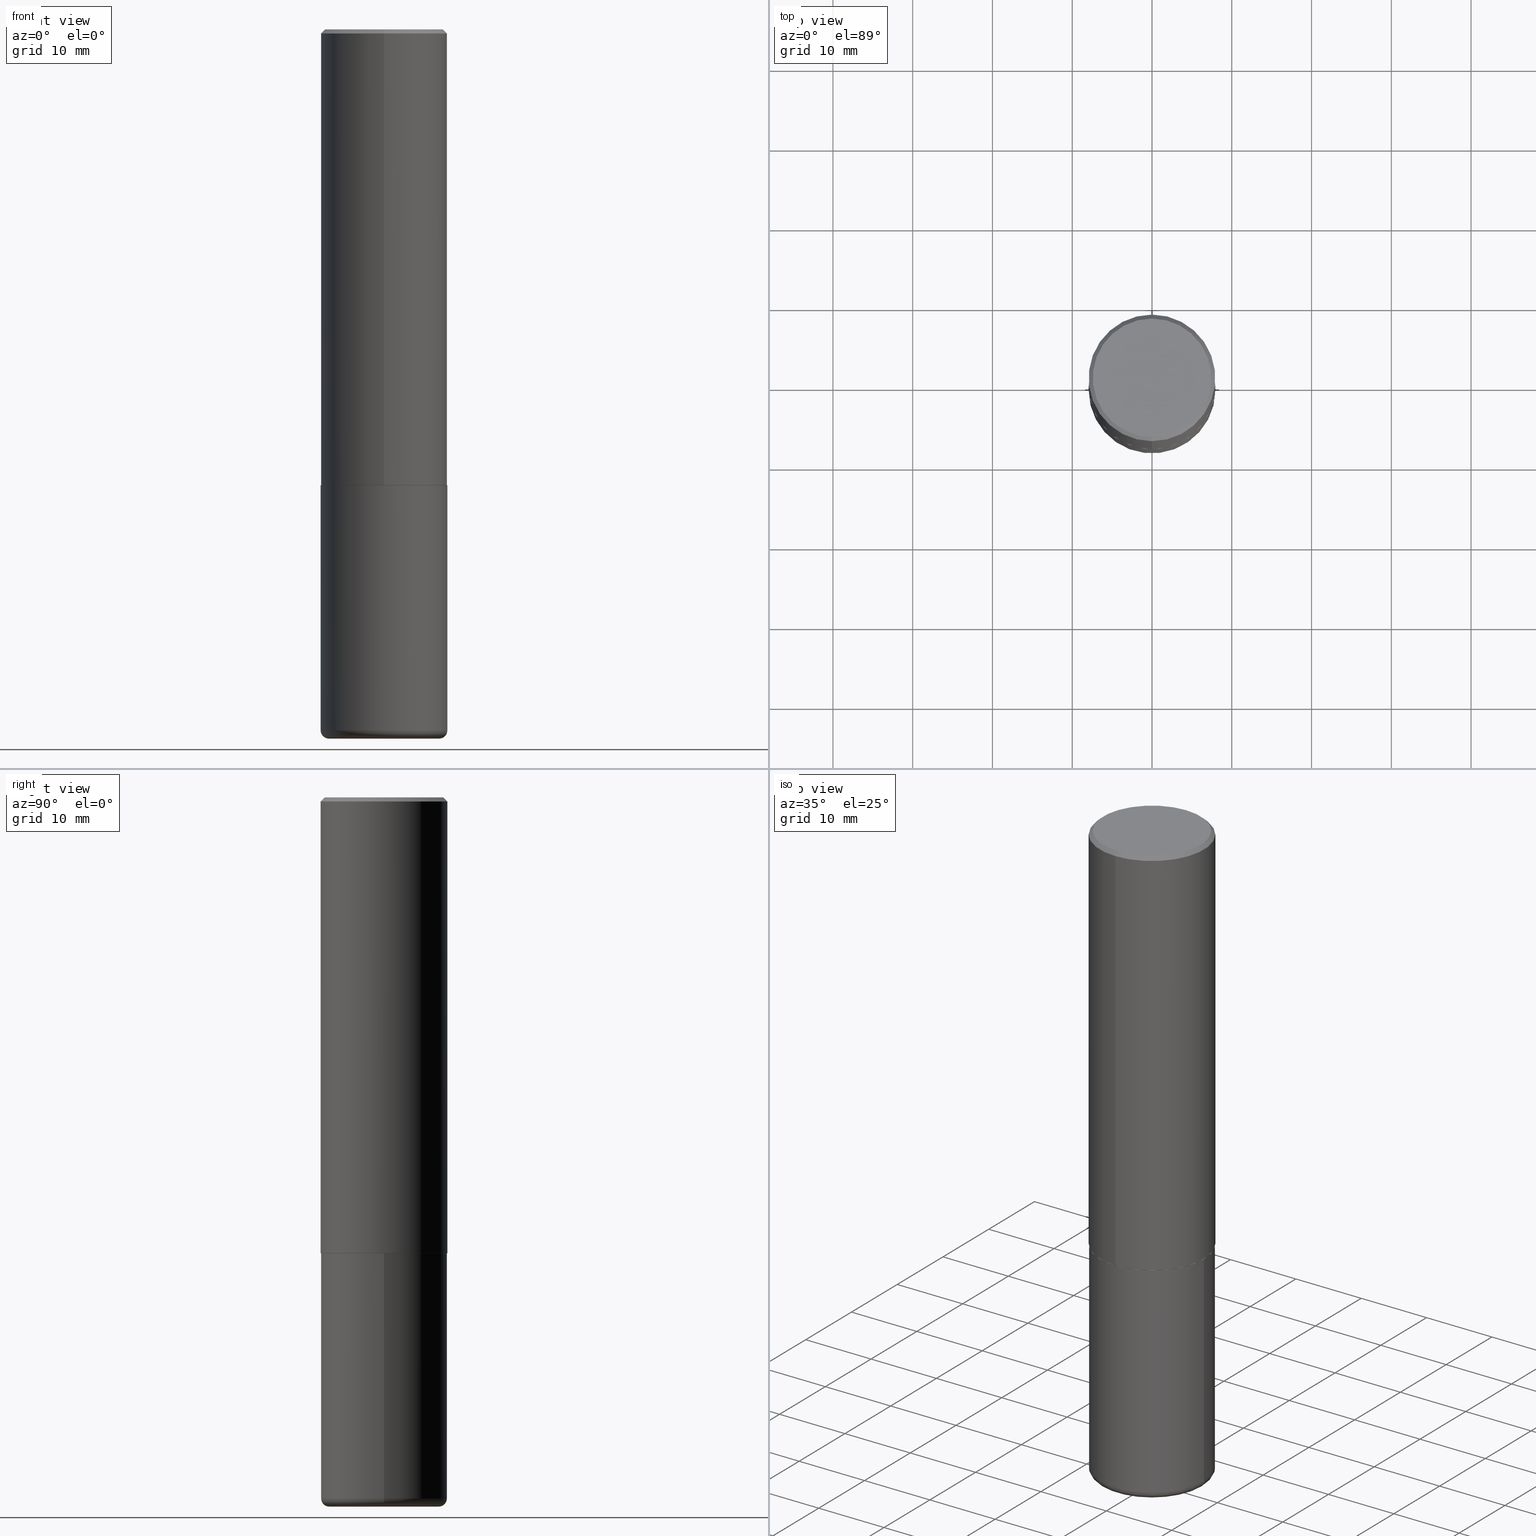
[diagram: canonical four-view strip — front | top / right | iso, engineering-drawing reading convention]
A machine part, canonical four-view strip (front | top / right | iso — engineering-drawing reading convention). The complete STEP part file that produces these views, byte-faithful:
ISO-10303-21;
HEADER;
FILE_DESCRIPTION (( 'STEP AP203' ),
    '1' );
FILE_NAME ('36576.STEP',
    '2024-03-01T16:47:28',
    ( '' ),
    ( '' ),
    'SwSTEP 2.0',
    'SolidWorks 2023',
    '' );
FILE_SCHEMA (( 'CONFIG_CONTROL_DESIGN' ));
ENDSEC;

DATA;
#1 = ORIENTED_EDGE ( 'NONE', *, *, #407, .T. ) ;
#2 = DIRECTION ( 'NONE',  ( -6.982962677686265922E-15, -1.000000000000000000, 3.490961429539358450E-15 ) ) ;
#3 = EDGE_CURVE ( 'NONE', #225, #168, #232, .T. ) ;
#4 = DIRECTION ( 'NONE',  ( -2.445468806185136597E-29, 3.491481338843145583E-15, 1.000000000000000000 ) ) ;
#5 = VERTEX_POINT ( 'NONE', #235 ) ;
#6 = LINE ( 'NONE', #73, #352 ) ;
#7 = ORIENTED_EDGE ( 'NONE', *, *, #93, .F. ) ;
#8 = DIRECTION ( 'NONE',  ( -4.851104656540957175E-15, -0.7071067811865490160, -0.7071067811865460184 ) ) ;
#9 = AXIS2_PLACEMENT_3D ( 'NONE', #249, #174, #296 ) ;
#10 = VERTEX_POINT ( 'NONE', #384 ) ;
#11 = CARTESIAN_POINT ( 'NONE',  ( -2.182175836776905099E-15, -0.3125000000000081601, -2.248999999999998778 ) ) ;
#12 = ORIENTED_EDGE ( 'NONE', *, *, #121, .F. ) ;
#13 = DIRECTION ( 'NONE',  ( -6.982962677686265133E-15, -1.000000000000000000, 3.496765431890254947E-15 ) ) ;
#14 = PERSON_AND_ORGANIZATION_ROLE ( 'creator' ) ;
#15 = DIRECTION ( 'NONE',  ( -2.445831856911549473E-29, 3.490961429539358055E-15, 1.000000000000000000 ) ) ;
#16 = EDGE_CURVE ( 'NONE', #168, #243, #219, .T. ) ;
#17 = VECTOR ( 'NONE', #19, 39.37007874015748854 ) ;
#18 = CALENDAR_DATE ( 2024, 1, 3 ) ;
#19 = DIRECTION ( 'NONE',  ( -4.937700262164378437E-15, -0.7071067811865208164, 0.7071067811865739960 ) ) ;
#20 = DIRECTION ( 'NONE',  ( 1.000000000000000000, -6.982962677686264344E-15, 0.000000000000000000 ) ) ;
#21 = CARTESIAN_POINT ( 'NONE',  ( 8.461322069400571907E-29, -1.208052543239728275E-14, -3.459999999999999520 ) ) ;
#22 = CC_DESIGN_PERSON_AND_ORGANIZATION_ASSIGNMENT ( #57, #307, ( #100 ) ) ;
#23 = FACE_OUTER_BOUND ( 'NONE', #319, .T. ) ;
#24 = CONICAL_SURFACE ( 'NONE', #246, 0.3125000000000001665, 0.7853981633974469467 ) ;
#25 = ORIENTED_EDGE ( 'NONE', *, *, #217, .F. ) ;
#26 = ADVANCED_FACE ( 'NONE', ( #381 ), #31, .T. ) ;
#27 = CARTESIAN_POINT ( 'NONE',  ( 2.182175836776959530E-15, 0.3125000000000000555, -0.02000000000000116615 ) ) ;
#28 = ADVANCED_FACE ( 'NONE', ( #128 ), #92, .T. ) ;
#29 = CARTESIAN_POINT ( 'NONE',  ( 4.891663713823116602E-31, -6.981922859078740516E-17, -0.02000000000000007327 ) ) ;
#30 = CONICAL_SURFACE ( 'NONE', #166, 0.3114999999999999991, 0.7853981633974141952 ) ;
#31 = CYLINDRICAL_SURFACE ( 'NONE', #413, 0.3125000000000000000 ) ;
#32 = EDGE_LOOP ( 'NONE', ( #204, #71, #176, #364 ) ) ;
#33 = APPROVAL_STATUS ( 'not_yet_approved' ) ;
#34 = DIRECTION ( 'NONE',  ( 6.982962677686265133E-15, 1.000000000000000000, -3.496765431890254947E-15 ) ) ;
#35 = ORIENTED_EDGE ( 'NONE', *, *, #3, .F. ) ;
#36 = DIRECTION ( 'NONE',  ( -2.445831856911549473E-29, 3.490961429539358055E-15, 1.000000000000000000 ) ) ;
#37 = ORIENTED_EDGE ( 'NONE', *, *, #155, .F. ) ;
#38 = DIRECTION ( 'NONE',  ( -2.445468806185136877E-29, 3.491481338843145188E-15, 1.000000000000000000 ) ) ;
#39 = CIRCLE ( 'NONE', #334, 0.2725000000000000200 ) ;
#40 = LOCAL_TIME ( 11, 47, 28.00000000000000000, #372 ) ;
#41 = VERTEX_POINT ( 'NONE', #357 ) ;
#42 = CARTESIAN_POINT ( 'NONE',  ( 5.502304813916556222E-29, -7.855833012397076871E-15, -2.249999999999999556 ) ) ;
#43 = DIRECTION ( 'NONE',  ( -2.445831856911549473E-29, 3.490961429539358055E-15, 1.000000000000000000 ) ) ;
#44 = CC_DESIGN_PERSON_AND_ORGANIZATION_ASSIGNMENT ( #278, #195, ( #186 ) ) ;
#45 = DIMENSIONAL_EXPONENTS ( 1.000000000000000000, 0.000000000000000000, 0.000000000000000000, 0.000000000000000000, 0.000000000000000000, 0.000000000000000000, 0.000000000000000000 ) ;
#46 = SHAPE_DEFINITION_REPRESENTATION ( #347, #83 ) ;
#47 = PLANE ( 'NONE',  #110 ) ;
#48 = VECTOR ( 'NONE', #118, 39.37007874015748854 ) ;
#49 = PERSON_AND_ORGANIZATION ( #130, #159 ) ;
#50 = DIRECTION ( 'NONE',  ( -1.000000000000000000, 6.982962677686265922E-15, -4.876176775795935793E-29 ) ) ;
#51 = CC_DESIGN_DATE_AND_TIME_ASSIGNMENT ( #310, #341, ( #186 ) ) ;
#52 = PERSON_AND_ORGANIZATION_ROLE ( 'creator' ) ;
#53 = CARTESIAN_POINT ( 'NONE',  ( 8.461322069400571907E-29, -1.208052543239728275E-14, -3.459999999999999520 ) ) ;
#54 = PERSON_AND_ORGANIZATION ( #130, #159 ) ;
#55 = PLANE ( 'NONE',  #237 ) ;
#56 = CONICAL_SURFACE ( 'NONE', #9, 0.3114999999999999991, 0.7853981633974141952 ) ;
#57 = PERSON_AND_ORGANIZATION ( #130, #159 ) ;
#58 = CARTESIAN_POINT ( 'NONE',  ( 0.3125000000000000000, -1.003800884917403522E-14, -2.249999999999999556 ) ) ;
#59 = ADVANCED_FACE ( 'NONE', ( #23 ), #24, .T. ) ;
#60 = VERTEX_POINT ( 'NONE', #203 ) ;
#61 = AXIS2_PLACEMENT_3D ( 'NONE', #42, #369, #269 ) ;
#62 = DIRECTION ( 'NONE',  ( 2.438088387897960049E-29, -3.491481338843145188E-15, -1.000000000000000000 ) ) ;
#63 = APPROVAL ( #33, 'UNSPECIFIED' ) ;
#64 = DIRECTION ( 'NONE',  ( 2.445831856911549473E-29, -3.490961429539358055E-15, -1.000000000000000000 ) ) ;
#65 = CARTESIAN_POINT ( 'NONE',  ( 4.891663713823116602E-31, -6.981922859078740516E-17, -0.02000000000000007327 ) ) ;
#66 = EDGE_LOOP ( 'NONE', ( #74, #295, #107, #7 ) ) ;
#67 = CIRCLE ( 'NONE', #308, 0.3114999999999999991 ) ;
#68 = CARTESIAN_POINT ( 'NONE',  ( 3.135738610382111405E-45, -4.475672565563925240E-31, -1.282074481743702017E-16 ) ) ;
#69 = EDGE_LOOP ( 'NONE', ( #265, #129 ) ) ;
#70 = FACE_OUTER_BOUND ( 'NONE', #388, .T. ) ;
#71 = ORIENTED_EDGE ( 'NONE', *, *, #317, .T. ) ;
#72 = APPROVAL_ROLE ( '' ) ;
#73 = CARTESIAN_POINT ( 'NONE',  ( -2.143905624303604008E-15, -0.3125000000000002220, -0.01999999999999898040 ) ) ;
#74 = ORIENTED_EDGE ( 'NONE', *, *, #224, .T. ) ;
#75 = PERSON_AND_ORGANIZATION_ROLE ( 'design_owner' ) ;
#76 = DIRECTION ( 'NONE',  ( -6.982962677686265922E-15, -1.000000000000000000, 3.490961429539358055E-15 ) ) ;
#77 = LOCAL_TIME ( 11, 47, 28.00000000000000000, #331 ) ;
#78 = EDGE_CURVE ( 'NONE', #225, #298, #280, .T. ) ;
#79 = CARTESIAN_POINT ( 'NONE',  ( 0.2725000000000000200, -1.398338276206678948E-14, -3.459999999999999520 ) ) ;
#80 = DIRECTION ( 'NONE',  ( 2.445831856911549473E-29, -3.490961429539357661E-15, -1.000000000000000000 ) ) ;
#81 = DESIGN_CONTEXT ( 'detailed design', #402, 'design' ) ;
#82 = AXIS2_PLACEMENT_3D ( 'NONE', #109, #143, #210 ) ;
#83 = ADVANCED_BREP_SHAPE_REPRESENTATION ( '36576', ( #150, #141, #90 ), #262 ) ;
#84 = SECURITY_CLASSIFICATION_LEVEL ( 'unclassified' ) ;
#85 = CARTESIAN_POINT ( 'NONE',  ( 8.559140821647978089E-29, -1.222018468595101092E-14, -3.500000000000000444 ) ) ;
#86 = CARTESIAN_POINT ( 'NONE',  ( 0.3125000000000001665, -1.426270126917424109E-14, -3.459999999999999520 ) ) ;
#87 = EDGE_CURVE ( 'NONE', #60, #333, #152, .T. ) ;
#88 = PRODUCT ( '36576', '36576', '', ( #355 ) ) ;
#89 = AXIS2_PLACEMENT_3D ( 'NONE', #184, #378, #251 ) ;
#90 = AXIS2_PLACEMENT_3D ( 'NONE', #285, #416, #229 ) ;
#91 = CARTESIAN_POINT ( 'NONE',  ( 0.000000000000000000, 0.000000000000000000, 0.000000000000000000 ) ) ;
#92 = CYLINDRICAL_SURFACE ( 'NONE', #324, 0.3125000000000002220 ) ;
#93 = EDGE_CURVE ( 'NONE', #359, #333, #321, .T. ) ;
#94 = AXIS2_PLACEMENT_3D ( 'NONE', #367, #239, #394 ) ;
#95 = CARTESIAN_POINT ( 'NONE',  ( 5.500675846194074304E-29, -7.851172255034016199E-15, -2.248999999999999666 ) ) ;
#96 = ORIENTED_EDGE ( 'NONE', *, *, #111, .T. ) ;
#97 = ORIENTED_EDGE ( 'NONE', *, *, #376, .T. ) ;
#98 = ORIENTED_EDGE ( 'NONE', *, *, #339, .F. ) ;
#99 = AXIS2_PLACEMENT_3D ( 'NONE', #328, #43, #13 ) ;
#100 = PRODUCT_DEFINITION_FORMATION_WITH_SPECIFIED_SOURCE ( 'ANY', '', #88, .NOT_KNOWN. ) ;
#101 = CARTESIAN_POINT ( 'NONE',  ( 2.182175836776959530E-15, 0.3125000000000000555, -0.02000000000000116615 ) ) ;
#102 = ORIENTED_EDGE ( 'NONE', *, *, #259, .T. ) ;
#103 = FACE_OUTER_BOUND ( 'NONE', #32, .T. ) ;
#104 = EDGE_CURVE ( 'NONE', #266, #268, #183, .T. ) ;
#105 = ORIENTED_EDGE ( 'NONE', *, *, #78, .F. ) ;
#106 = CARTESIAN_POINT ( 'NONE',  ( -2.075300644325889071E-15, -0.2925000000000002598, 8.928987699658930056E-16 ) ) ;
#107 = ORIENTED_EDGE ( 'NONE', *, *, #151, .F. ) ;
#108 = ADVANCED_FACE ( 'NONE', ( #382 ), #226, .F. ) ;
#109 = CARTESIAN_POINT ( 'NONE',  ( 0.000000000000000000, 0.000000000000000000, 0.000000000000000000 ) ) ;
#110 = AXIS2_PLACEMENT_3D ( 'NONE', #188, #80, #406 ) ;
#111 = EDGE_CURVE ( 'NONE', #41, #5, #116, .T. ) ;
#112 = DIRECTION ( 'NONE',  ( -2.445831856911549473E-29, 3.490961429539357661E-15, 1.000000000000000000 ) ) ;
#113 =( NAMED_UNIT ( * ) PLANE_ANGLE_UNIT ( ) SI_UNIT ( $, .RADIAN. ) );
#114 = APPROVAL_STATUS ( 'not_yet_approved' ) ;
#115 = DIRECTION ( 'NONE',  ( 2.438088387897960049E-29, -3.491481338843145188E-15, -1.000000000000000000 ) ) ;
#116 = CIRCLE ( 'NONE', #199, 0.2725000000000000200 ) ;
#117 = LOCAL_TIME ( 11, 47, 28.00000000000000000, #374 ) ;
#118 = DIRECTION ( 'NONE',  ( 5.024295867787889629E-15, 0.7071067811865257013, 0.7071067811865691111 ) ) ;
#119 = CC_DESIGN_PERSON_AND_ORGANIZATION_ASSIGNMENT ( #342, #52, ( #100 ) ) ;
#120 = AXIS2_PLACEMENT_3D ( 'NONE', #244, #182, #34 ) ;
#121 = EDGE_CURVE ( 'NONE', #298, #243, #6, .T. ) ;
#122 = CARTESIAN_POINT ( 'NONE',  ( 0.3125000000000000000, -2.182175836776958347E-15, 1.523805242436230075E-29 ) ) ;
#123 = ADVANCED_FACE ( 'NONE', ( #332 ), #277, .T. ) ;
#124 = DIRECTION ( 'NONE',  ( -2.445831856911549473E-29, 3.490961429539358055E-15, 1.000000000000000000 ) ) ;
#125 = CARTESIAN_POINT ( 'NONE',  ( 8.559140821647978089E-29, -1.222018468595101092E-14, -3.500000000000000444 ) ) ;
#126 = CIRCLE ( 'NONE', #194, 0.04000000000000025757 ) ;
#127 = CC_DESIGN_APPROVAL ( #160, ( #100 ) ) ;
#128 = FACE_OUTER_BOUND ( 'NONE', #327, .T. ) ;
#129 = ORIENTED_EDGE ( 'NONE', *, *, #407, .F. ) ;
#130 = PERSON ( 'UNSPECIFIED', 'UNSPECIFIED', 'UNSPECIFIED', ('UNSPECIFIED'), ('UNSPECIFIED'), ('UNSPECIFIED') ) ;
#131 = ORIENTED_EDGE ( 'NONE', *, *, #87, .F. ) ;
#132 = CARTESIAN_POINT ( 'NONE',  ( -0.3125000000000000000, 2.220446049250313081E-15, -1.537167215704658232E-29 ) ) ;
#133 = ORIENTED_EDGE ( 'NONE', *, *, #151, .T. ) ;
#134 = AXIS2_PLACEMENT_3D ( 'NONE', #95, #124, #258 ) ;
#135 = EDGE_CURVE ( 'NONE', #5, #10, #126, .T. ) ;
#136 = LINE ( 'NONE', #132, #223 ) ;
#137 = ORIENTED_EDGE ( 'NONE', *, *, #93, .T. ) ;
#138 = CARTESIAN_POINT ( 'NONE',  ( 2.220446049250342269E-15, 0.3124999999999924505, -2.249000000000000998 ) ) ;
#139 = ORIENTED_EDGE ( 'NONE', *, *, #16, .T. ) ;
#140 = CARTESIAN_POINT ( 'NONE',  ( -2.175192874099216718E-15, -0.3115000000000078817, -2.249999999999999112 ) ) ;
#141 = MANIFOLD_SOLID_BREP ( 'Body-Move/Copy2[2]', #297 ) ;
#142 = PERSON_AND_ORGANIZATION ( #130, #159 ) ;
#143 = DIRECTION ( 'NONE',  ( -2.445468806185136597E-29, 3.491481338843145583E-15, 1.000000000000000000 ) ) ;
#144 = CIRCLE ( 'NONE', #379, 0.3125000000000002776 ) ;
#145 = EDGE_CURVE ( 'NONE', #10, #60, #136, .T. ) ;
#146 = COORDINATED_UNIVERSAL_TIME_OFFSET ( 5, 0, .BEHIND. ) ;
#147 = LINE ( 'NONE', #284, #275 ) ;
#148 = APPLICATION_PROTOCOL_DEFINITION ( 'international standard', 'config_control_design', 1994, #175 ) ;
#149 = DIRECTION ( 'NONE',  ( 1.000000000000000000, -6.982962677686269077E-15, 4.883557194083113462E-29 ) ) ;
#150 = MANIFOLD_SOLID_BREP ( 'Body-Move/Copy2[1]', #157 ) ;
#151 = EDGE_CURVE ( 'NONE', #333, #60, #177, .T. ) ;
#152 = CIRCLE ( 'NONE', #383, 0.3125000000000000000 ) ;
#153 = CARTESIAN_POINT ( 'NONE',  ( -2.175192874099216718E-15, -0.3115000000000078817, -2.249999999999999112 ) ) ;
#154 = DIRECTION ( 'NONE',  ( -2.445468806185136597E-29, 3.491481338843145583E-15, 1.000000000000000000 ) ) ;
#155 = EDGE_CURVE ( 'NONE', #268, #266, #144, .T. ) ;
#156 = CARTESIAN_POINT ( 'NONE',  ( 3.135738610382111405E-45, -4.475672565563925240E-31, -1.282074481743702017E-16 ) ) ;
#157 = CLOSED_SHELL ( 'NONE', ( #26, #330, #108, #190, #410, #306 ) ) ;
#158 = CIRCLE ( 'NONE', #256, 0.3124999999999999445 ) ;
#159 = ORGANIZATION ( 'UNSPECIFIED', 'UNSPECIFIED', '' ) ;
#160 = APPROVAL ( #114, 'UNSPECIFIED' ) ;
#161 = DIRECTION ( 'NONE',  ( 6.982962677686265133E-15, 1.000000000000000000, -3.496765431890254947E-15 ) ) ;
#162 = EDGE_LOOP ( 'NONE', ( #418, #236 ) ) ;
#163 = DIRECTION ( 'NONE',  ( -1.000000000000000000, 6.982962677686265922E-15, -4.876176775795935793E-29 ) ) ;
#164 = DIRECTION ( 'NONE',  ( -6.982962677686265133E-15, -1.000000000000000000, 3.496765431890254947E-15 ) ) ;
#165 = EDGE_CURVE ( 'NONE', #243, #168, #313, .T. ) ;
#166 = AXIS2_PLACEMENT_3D ( 'NONE', #391, #36, #206 ) ;
#167 = TOROIDAL_SURFACE ( 'NONE', #213, 0.2725000000000000200, 0.04000000000000029227 ) ;
#168 = VERTEX_POINT ( 'NONE', #101 ) ;
#169 = PRODUCT_DEFINITION ( 'UNKNOWN', '', #100, #81 ) ;
#170 = ORIENTED_EDGE ( 'NONE', *, *, #104, .T. ) ;
#171 = DIRECTION ( 'NONE',  ( 1.000000000000000000, -6.982962677686287221E-15, 0.000000000000000000 ) ) ;
#172 = ORIENTED_EDGE ( 'NONE', *, *, #16, .F. ) ;
#173 = EDGE_CURVE ( 'NONE', #41, #359, #286, .T. ) ;
#174 = DIRECTION ( 'NONE',  ( -2.445831856911549473E-29, 3.490961429539358055E-15, 1.000000000000000000 ) ) ;
#175 = APPLICATION_CONTEXT ( 'configuration controlled 3d designs of mechanical parts and assemblies' ) ;
#176 = ORIENTED_EDGE ( 'NONE', *, *, #104, .F. ) ;
#177 = CIRCLE ( 'NONE', #61, 0.3125000000000000000 ) ;
#178 = DIRECTION ( 'NONE',  ( -6.982962677686265922E-15, -1.000000000000000000, 3.490961429539357661E-15 ) ) ;
#179 = VERTEX_POINT ( 'NONE', #140 ) ;
#180 = CARTESIAN_POINT ( 'NONE',  ( 5.500675846194074304E-29, -7.851172255034016199E-15, -2.248999999999999666 ) ) ;
#181 = APPLICATION_PROTOCOL_DEFINITION ( 'international standard', 'config_control_design', 1994, #402 ) ;
#182 = DIRECTION ( 'NONE',  ( 2.445831856911549473E-29, -3.490961429539358055E-15, -1.000000000000000000 ) ) ;
#183 = CIRCLE ( 'NONE', #134, 0.3125000000000002776 ) ;
#184 = CARTESIAN_POINT ( 'NONE',  ( 5.503121678050986594E-29, -7.854663216463556216E-15, -2.250000000000000000 ) ) ;
#185 = CIRCLE ( 'NONE', #227, 0.2925000000000002598 ) ;
#186 = SECURITY_CLASSIFICATION ( '', '', #84 ) ;
#187 = APPROVAL_DATE_TIME ( #279, #63 ) ;
#188 = CARTESIAN_POINT ( 'NONE',  ( 2.042516583223234512E-15, 0.2925000000000002598, -1.085209942227448111E-15 ) ) ;
#189 = CALENDAR_DATE ( 2024, 1, 3 ) ;
#190 = ADVANCED_FACE ( 'NONE', ( #267 ), #273, .T. ) ;
#191 = DIRECTION ( 'NONE',  ( -2.445468806185136597E-29, 3.491481338843145583E-15, 1.000000000000000000 ) ) ;
#192 = DATE_AND_TIME ( #400, #380 ) ;
#193 = FACE_OUTER_BOUND ( 'NONE', #387, .T. ) ;
#194 = AXIS2_PLACEMENT_3D ( 'NONE', #398, #271, #208 ) ;
#195 = PERSON_AND_ORGANIZATION_ROLE ( 'classification_officer' ) ;
#196 = DIRECTION ( 'NONE',  ( -2.445831856911549473E-29, 3.490961429539357661E-15, 1.000000000000000000 ) ) ;
#197 = DIRECTION ( 'NONE',  ( -6.982962677686265922E-15, -1.000000000000000000, 3.490961429539358055E-15 ) ) ;
#198 = ORIENTED_EDGE ( 'NONE', *, *, #165, .T. ) ;
#199 = AXIS2_PLACEMENT_3D ( 'NONE', #125, #260, #230 ) ;
#200 = ORIENTED_EDGE ( 'NONE', *, *, #173, .T. ) ;
#201 = EDGE_LOOP ( 'NONE', ( #241, #329, #137, #131 ) ) ;
#202 = CC_DESIGN_DATE_AND_TIME_ASSIGNMENT ( #218, #403, ( #169 ) ) ;
#203 = CARTESIAN_POINT ( 'NONE',  ( -0.3125000000000000000, -7.747733173146866727E-15, -2.249999999999999556 ) ) ;
#204 = ORIENTED_EDGE ( 'NONE', *, *, #350, .T. ) ;
#205 = TOROIDAL_SURFACE ( 'NONE', #399, 0.2725000000000000200, 0.04000000000000029227 ) ;
#206 = DIRECTION ( 'NONE',  ( -6.982962677686265922E-15, -1.000000000000000000, 3.507991003100177457E-15 ) ) ;
#207 = ORIENTED_EDGE ( 'NONE', *, *, #389, .F. ) ;
#208 = DIRECTION ( 'NONE',  ( -1.000000000000000000, 7.105427357601027102E-15, 0.000000000000000000 ) ) ;
#209 = ORIENTED_EDGE ( 'NONE', *, *, #3, .T. ) ;
#210 = DIRECTION ( 'NONE',  ( 1.000000000000000000, -6.982962677686266711E-15, 4.876176775795936353E-29 ) ) ;
#211 = ORIENTED_EDGE ( 'NONE', *, *, #135, .F. ) ;
#212 = AXIS2_PLACEMENT_3D ( 'NONE', #156, #415, #2 ) ;
#213 = AXIS2_PLACEMENT_3D ( 'NONE', #375, #191, #149 ) ;
#214 = DIRECTION ( 'NONE',  ( -6.982962677686265922E-15, -1.000000000000000000, 3.496765431890253764E-15 ) ) ;
#215 = PLANE ( 'NONE',  #291 ) ;
#216 = CARTESIAN_POINT ( 'NONE',  ( 2.216893335571567797E-15, 0.3114999999999921720, -2.250000000000001332 ) ) ;
#217 = EDGE_CURVE ( 'NONE', #266, #243, #247, .T. ) ;
#218 = DATE_AND_TIME ( #18, #40 ) ;
#219 = CIRCLE ( 'NONE', #261, 0.3125000000000001665 ) ;
#220 = CIRCLE ( 'NONE', #94, 0.3124999999999999445 ) ;
#221 = APPROVAL_STATUS ( 'not_yet_approved' ) ;
#222 = DIRECTION ( 'NONE',  ( 1.000000000000000000, -6.982962677686269077E-15, 4.883557194083113462E-29 ) ) ;
#223 = VECTOR ( 'NONE', #38, 39.37007874015748143 ) ;
#224 = EDGE_CURVE ( 'NONE', #359, #10, #220, .T. ) ;
#225 = VERTEX_POINT ( 'NONE', #363 ) ;
#226 = PLANE ( 'NONE',  #348 ) ;
#227 = AXIS2_PLACEMENT_3D ( 'NONE', #68, #15, #396 ) ;
#228 = ADVANCED_FACE ( 'NONE', ( #70 ), #30, .T. ) ;
#229 = DIRECTION ( 'NONE',  ( 1.000000000000000000, 0.000000000000000000, 0.000000000000000000 ) ) ;
#230 = DIRECTION ( 'NONE',  ( 1.000000000000000000, -6.982962677686266711E-15, 0.000000000000000000 ) ) ;
#231 = ADVANCED_FACE ( 'NONE', ( #103 ), #56, .T. ) ;
#232 = LINE ( 'NONE', #27, #390 ) ;
#233 = EDGE_LOOP ( 'NONE', ( #98, #323, #397, #172 ) ) ;
#234 = ADVANCED_FACE ( 'NONE', ( #326 ), #408, .T. ) ;
#235 = CARTESIAN_POINT ( 'NONE',  ( -0.2725000000000000200, -1.007201755707584997E-14, -3.500000000000000444 ) ) ;
#236 = ORIENTED_EDGE ( 'NONE', *, *, #376, .F. ) ;
#237 = AXIS2_PLACEMENT_3D ( 'NONE', #314, #115, #50 ) ;
#238 = APPROVAL_PERSON_ORGANIZATION ( #142, #386, #253 ) ;
#239 = DIRECTION ( 'NONE',  ( -2.445468806185136597E-29, 3.491481338843145583E-15, 1.000000000000000000 ) ) ;
#240 = ADVANCED_FACE ( 'NONE', ( #242 ), #215, .F. ) ;
#241 = ORIENTED_EDGE ( 'NONE', *, *, #145, .F. ) ;
#242 = FACE_OUTER_BOUND ( 'NONE', #69, .T. ) ;
#243 = VERTEX_POINT ( 'NONE', #300 ) ;
#244 = CARTESIAN_POINT ( 'NONE',  ( 4.891663713823116602E-31, -6.981922859078740516E-17, -0.02000000000000007327 ) ) ;
#245 = ORIENTED_EDGE ( 'NONE', *, *, #173, .F. ) ;
#246 = AXIS2_PLACEMENT_3D ( 'NONE', #65, #64, #161 ) ;
#247 = LINE ( 'NONE', #294, #371 ) ;
#248 = APPROVAL_ROLE ( '' ) ;
#249 = CARTESIAN_POINT ( 'NONE',  ( 5.503121678050986594E-29, -7.854663216463556216E-15, -2.250000000000000000 ) ) ;
#250 = DIRECTION ( 'NONE',  ( -6.982962677686265922E-15, -1.000000000000000000, 3.507991003100177457E-15 ) ) ;
#251 = DIRECTION ( 'NONE',  ( -6.982962677686265922E-15, -1.000000000000000000, 3.507991003100177457E-15 ) ) ;
#252 = LOCAL_TIME ( 11, 47, 28.00000000000000000, #146 ) ;
#253 = APPROVAL_ROLE ( '' ) ;
#254 = FACE_OUTER_BOUND ( 'NONE', #289, .T. ) ;
#255 = LINE ( 'NONE', #153, #17 ) ;
#256 = AXIS2_PLACEMENT_3D ( 'NONE', #53, #373, #20 ) ;
#257 = CARTESIAN_POINT ( 'NONE',  ( 0.000000000000000000, 0.000000000000000000, 0.000000000000000000 ) ) ;
#258 = DIRECTION ( 'NONE',  ( -6.982962677686265922E-15, -1.000000000000000000, 3.496765431890253764E-15 ) ) ;
#259 = EDGE_CURVE ( 'NONE', #298, #225, #185, .T. ) ;
#260 = DIRECTION ( 'NONE',  ( -2.445468806185136597E-29, 3.491481338843145583E-15, 1.000000000000000000 ) ) ;
#261 = AXIS2_PLACEMENT_3D ( 'NONE', #29, #322, #164 ) ;
#262 =( GEOMETRIC_REPRESENTATION_CONTEXT ( 3 ) GLOBAL_UNCERTAINTY_ASSIGNED_CONTEXT ( ( #358 ) ) GLOBAL_UNIT_ASSIGNED_CONTEXT ( ( #281, #113, #370 ) ) REPRESENTATION_CONTEXT ( 'NONE', 'WORKASPACE' ) );
#263 = CARTESIAN_POINT ( 'NONE',  ( 5.502304813916556222E-29, -7.855833012397076871E-15, -2.249999999999999556 ) ) ;
#264 = PERSON_AND_ORGANIZATION ( #130, #159 ) ;
#265 = ORIENTED_EDGE ( 'NONE', *, *, #350, .F. ) ;
#266 = VERTEX_POINT ( 'NONE', #11 ) ;
#267 = FACE_OUTER_BOUND ( 'NONE', #201, .T. ) ;
#268 = VERTEX_POINT ( 'NONE', #138 ) ;
#269 = DIRECTION ( 'NONE',  ( 1.000000000000000000, -6.982962677686269077E-15, 0.000000000000000000 ) ) ;
#270 = ORIENTED_EDGE ( 'NONE', *, *, #135, .T. ) ;
#271 = DIRECTION ( 'NONE',  ( 7.105427357601001859E-15, 1.000000000000000000, -3.491481338843145583E-15 ) ) ;
#272 = ORIENTED_EDGE ( 'NONE', *, *, #78, .T. ) ;
#273 = CYLINDRICAL_SURFACE ( 'NONE', #82, 0.3125000000000000000 ) ;
#274 = CC_DESIGN_PERSON_AND_ORGANIZATION_ASSIGNMENT ( #302, #75, ( #88 ) ) ;
#275 = VECTOR ( 'NONE', #196, 39.37007874015748143 ) ;
#276 = APPROVAL_PERSON_ORGANIZATION ( #49, #160, #248 ) ;
#277 = CYLINDRICAL_SURFACE ( 'NONE', #318, 0.3125000000000002220 ) ;
#278 = PERSON_AND_ORGANIZATION ( #130, #159 ) ;
#279 = DATE_AND_TIME ( #344, #77 ) ;
#280 = CIRCLE ( 'NONE', #212, 0.2925000000000002598 ) ;
#281 =( CONVERSION_BASED_UNIT ( 'INCH', #404 ) LENGTH_UNIT ( ) NAMED_UNIT ( #45 ) );
#282 = CC_DESIGN_APPROVAL ( #386, ( #186 ) ) ;
#283 = DIRECTION ( 'NONE',  ( 1.000000000000000000, -6.982962677686266711E-15, 0.000000000000000000 ) ) ;
#284 = CARTESIAN_POINT ( 'NONE',  ( 2.220446049250314264E-15, 0.3125000000000002220, -1.090925446731050132E-15 ) ) ;
#285 = CARTESIAN_POINT ( 'NONE',  ( 0.000000000000000000, 0.000000000000000000, 0.000000000000000000 ) ) ;
#286 = CIRCLE ( 'NONE', #299, 0.04000000000000025757 ) ;
#287 = DIRECTION ( 'NONE',  ( 4.937700262164540942E-15, 0.7071067811865441310, -0.7071067811865509034 ) ) ;
#288 = DIRECTION ( 'NONE',  ( 1.000000000000000000, -6.982962677686269077E-15, 0.000000000000000000 ) ) ;
#289 = EDGE_LOOP ( 'NONE', ( #211, #97, #200, #207 ) ) ;
#290 = EDGE_LOOP ( 'NONE', ( #12, #105, #209, #139 ) ) ;
#291 = AXIS2_PLACEMENT_3D ( 'NONE', #305, #365, #178 ) ;
#292 = DIRECTION ( 'NONE',  ( 1.000000000000000000, -6.982962677686266711E-15, 4.876176775795936353E-29 ) ) ;
#293 = ORIENTED_EDGE ( 'NONE', *, *, #259, .F. ) ;
#294 = CARTESIAN_POINT ( 'NONE',  ( -2.182175836776959530E-15, -0.3125000000000002220, 1.090925446731050132E-15 ) ) ;
#295 = ORIENTED_EDGE ( 'NONE', *, *, #145, .T. ) ;
#296 = DIRECTION ( 'NONE',  ( -6.982962677686265922E-15, -1.000000000000000000, 3.507991003100177457E-15 ) ) ;
#297 = CLOSED_SHELL ( 'NONE', ( #231, #28, #59, #234, #123, #228, #240, #304 ) ) ;
#298 = VERTEX_POINT ( 'NONE', #106 ) ;
#299 = AXIS2_PLACEMENT_3D ( 'NONE', #79, #401, #171 ) ;
#300 = CARTESIAN_POINT ( 'NONE',  ( -2.143905624303604008E-15, -0.3125000000000002220, -0.01999999999999898040 ) ) ;
#301 = ORIENTED_EDGE ( 'NONE', *, *, #339, .T. ) ;
#302 = PERSON_AND_ORGANIZATION ( #130, #159 ) ;
#303 = DIRECTION ( 'NONE',  ( -2.445831856911549473E-29, 3.490961429539358055E-15, 1.000000000000000000 ) ) ;
#304 = ADVANCED_FACE ( 'NONE', ( #193 ), #47, .F. ) ;
#305 = CARTESIAN_POINT ( 'NONE',  ( 5.503121678050985473E-29, -7.854663216463554638E-15, -2.249999999999999556 ) ) ;
#306 = ADVANCED_FACE ( 'NONE', ( #312 ), #55, .T. ) ;
#307 = PERSON_AND_ORGANIZATION_ROLE ( 'design_supplier' ) ;
#308 = AXIS2_PLACEMENT_3D ( 'NONE', #411, #309, #250 ) ;
#309 = DIRECTION ( 'NONE',  ( -2.445831856911549473E-29, 3.490961429539358055E-15, 1.000000000000000000 ) ) ;
#310 = DATE_AND_TIME ( #377, #117 ) ;
#311 = APPROVAL_DATE_TIME ( #192, #386 ) ;
#312 = FACE_OUTER_BOUND ( 'NONE', #162, .T. ) ;
#313 = CIRCLE ( 'NONE', #99, 0.3125000000000001665 ) ;
#314 = CARTESIAN_POINT ( 'NONE',  ( 3.658783094452102937E-29, -1.923777586233627620E-14, -3.500000000000000444 ) ) ;
#315 = PRODUCT_RELATED_PRODUCT_CATEGORY ( 'detail', '', ( #88 ) ) ;
#316 = VERTEX_POINT ( 'NONE', #216 ) ;
#317 = EDGE_CURVE ( 'NONE', #316, #268, #412, .T. ) ;
#318 = AXIS2_PLACEMENT_3D ( 'NONE', #337, #336, #76 ) ;
#319 = EDGE_LOOP ( 'NONE', ( #293, #393, #198, #35 ) ) ;
#320 = CC_DESIGN_PERSON_AND_ORGANIZATION_ASSIGNMENT ( #54, #14, ( #169 ) ) ;
#321 = LINE ( 'NONE', #122, #414 ) ;
#322 = DIRECTION ( 'NONE',  ( -2.445831856911549473E-29, 3.490961429539358055E-15, 1.000000000000000000 ) ) ;
#323 = ORIENTED_EDGE ( 'NONE', *, *, #155, .T. ) ;
#324 = AXIS2_PLACEMENT_3D ( 'NONE', #257, #351, #197 ) ;
#325 = EDGE_LOOP ( 'NONE', ( #96, #270, #385, #245 ) ) ;
#326 = FACE_OUTER_BOUND ( 'NONE', #290, .T. ) ;
#327 = EDGE_LOOP ( 'NONE', ( #170, #301, #368, #25 ) ) ;
#328 = CARTESIAN_POINT ( 'NONE',  ( 4.891663713823116602E-31, -6.981922859078740516E-17, -0.02000000000000007327 ) ) ;
#329 = ORIENTED_EDGE ( 'NONE', *, *, #389, .T. ) ;
#330 = ADVANCED_FACE ( 'NONE', ( #409 ), #205, .T. ) ;
#331 = COORDINATED_UNIVERSAL_TIME_OFFSET ( 5, 0, .BEHIND. ) ;
#332 = FACE_OUTER_BOUND ( 'NONE', #233, .T. ) ;
#333 = VERTEX_POINT ( 'NONE', #58 ) ;
#334 = AXIS2_PLACEMENT_3D ( 'NONE', #85, #349, #283 ) ;
#335 = EDGE_CURVE ( 'NONE', #179, #266, #255, .T. ) ;
#336 = DIRECTION ( 'NONE',  ( -2.445831856911549473E-29, 3.490961429539358055E-15, 1.000000000000000000 ) ) ;
#337 = CARTESIAN_POINT ( 'NONE',  ( 0.000000000000000000, 0.000000000000000000, 0.000000000000000000 ) ) ;
#338 = DATE_AND_TIME ( #189, #252 ) ;
#339 = EDGE_CURVE ( 'NONE', #268, #168, #147, .T. ) ;
#340 = CIRCLE ( 'NONE', #89, 0.3114999999999999991 ) ;
#341 = DATE_TIME_ROLE ( 'classification_date' ) ;
#342 = PERSON_AND_ORGANIZATION ( #130, #159 ) ;
#343 = CARTESIAN_POINT ( 'NONE',  ( 2.213340621892766504E-15, 0.3114999999999921720, -2.250000000000001332 ) ) ;
#344 = CALENDAR_DATE ( 2024, 1, 3 ) ;
#345 =( LENGTH_UNIT ( ) NAMED_UNIT ( * ) SI_UNIT ( $, .METRE. ) );
#346 = APPROVAL_DATE_TIME ( #338, #160 ) ;
#347 = PRODUCT_DEFINITION_SHAPE ( 'NONE', 'NONE',  #169 ) ;
#348 = AXIS2_PLACEMENT_3D ( 'NONE', #353, #62, #163 ) ;
#349 = DIRECTION ( 'NONE',  ( -2.445468806185136597E-29, 3.491481338843145583E-15, 1.000000000000000000 ) ) ;
#350 = EDGE_CURVE ( 'NONE', #179, #316, #340, .T. ) ;
#351 = DIRECTION ( 'NONE',  ( -2.445831856911549473E-29, 3.490961429539358055E-15, 1.000000000000000000 ) ) ;
#352 = VECTOR ( 'NONE', #8, 39.37007874015748143 ) ;
#353 = CARTESIAN_POINT ( 'NONE',  ( 5.502304813916556222E-29, -7.855833012397076871E-15, -2.249999999999999556 ) ) ;
#354 = APPROVAL_PERSON_ORGANIZATION ( #264, #63, #72 ) ;
#355 = MECHANICAL_CONTEXT ( 'NONE', #175, 'mechanical' ) ;
#356 = DIRECTION ( 'NONE',  ( -2.445468806185136597E-29, 3.491481338843145583E-15, 1.000000000000000000 ) ) ;
#357 = CARTESIAN_POINT ( 'NONE',  ( 0.2725000000000000200, -1.412304201562051765E-14, -3.500000000000000444 ) ) ;
#358 = UNCERTAINTY_MEASURE_WITH_UNIT (LENGTH_MEASURE( 1.000000000000000082E-05 ), #281, 'distance_accuracy_value', 'NONE');
#359 = VERTEX_POINT ( 'NONE', #86 ) ;
#360 = ORIENTED_EDGE ( 'NONE', *, *, #87, .T. ) ;
#361 = EDGE_LOOP ( 'NONE', ( #133, #360 ) ) ;
#362 = CC_DESIGN_APPROVAL ( #63, ( #169 ) ) ;
#363 = CARTESIAN_POINT ( 'NONE',  ( 2.112346210000097415E-15, 0.2925000000000002598, -1.149313666314633409E-15 ) ) ;
#364 = ORIENTED_EDGE ( 'NONE', *, *, #335, .F. ) ;
#365 = DIRECTION ( 'NONE',  ( -2.445831856911549473E-29, 3.490961429539357661E-15, 1.000000000000000000 ) ) ;
#366 = ORIENTED_EDGE ( 'NONE', *, *, #335, .T. ) ;
#367 = CARTESIAN_POINT ( 'NONE',  ( 8.461322069400571907E-29, -1.208052543239728275E-14, -3.459999999999999520 ) ) ;
#368 = ORIENTED_EDGE ( 'NONE', *, *, #165, .F. ) ;
#369 = DIRECTION ( 'NONE',  ( -2.445468806185136597E-29, 3.491481338843145583E-15, 1.000000000000000000 ) ) ;
#370 =( NAMED_UNIT ( * ) SI_UNIT ( $, .STERADIAN. ) SOLID_ANGLE_UNIT ( ) );
#371 = VECTOR ( 'NONE', #112, 39.37007874015748143 ) ;
#372 = COORDINATED_UNIVERSAL_TIME_OFFSET ( 5, 0, .BEHIND. ) ;
#373 = DIRECTION ( 'NONE',  ( -2.445468806185136597E-29, 3.491481338843145583E-15, 1.000000000000000000 ) ) ;
#374 = COORDINATED_UNIVERSAL_TIME_OFFSET ( 5, 0, .BEHIND. ) ;
#375 = CARTESIAN_POINT ( 'NONE',  ( 8.461322069400571907E-29, -1.208052543239728275E-14, -3.459999999999999520 ) ) ;
#376 = EDGE_CURVE ( 'NONE', #5, #41, #39, .T. ) ;
#377 = CALENDAR_DATE ( 2024, 1, 3 ) ;
#378 = DIRECTION ( 'NONE',  ( -2.445831856911549473E-29, 3.490961429539358055E-15, 1.000000000000000000 ) ) ;
#379 = AXIS2_PLACEMENT_3D ( 'NONE', #180, #303, #214 ) ;
#380 = LOCAL_TIME ( 11, 47, 28.00000000000000000, #405 ) ;
#381 = FACE_OUTER_BOUND ( 'NONE', #66, .T. ) ;
#382 = FACE_OUTER_BOUND ( 'NONE', #361, .T. ) ;
#383 = AXIS2_PLACEMENT_3D ( 'NONE', #263, #4, #288 ) ;
#384 = CARTESIAN_POINT ( 'NONE',  ( -0.3125000000000001665, -9.860079383146966509E-15, -3.459999999999999520 ) ) ;
#385 = ORIENTED_EDGE ( 'NONE', *, *, #224, .F. ) ;
#386 = APPROVAL ( #221, 'UNSPECIFIED' ) ;
#387 = EDGE_LOOP ( 'NONE', ( #272, #102 ) ) ;
#388 = EDGE_LOOP ( 'NONE', ( #395, #1, #366, #37 ) ) ;
#389 = EDGE_CURVE ( 'NONE', #10, #359, #158, .T. ) ;
#390 = VECTOR ( 'NONE', #287, 39.37007874015748143 ) ;
#391 = CARTESIAN_POINT ( 'NONE',  ( 5.503121678050986594E-29, -7.854663216463556216E-15, -2.250000000000000000 ) ) ;
#392 = CC_DESIGN_SECURITY_CLASSIFICATION ( #186, ( #100 ) ) ;
#393 = ORIENTED_EDGE ( 'NONE', *, *, #121, .T. ) ;
#394 = DIRECTION ( 'NONE',  ( 1.000000000000000000, -6.982962677686264344E-15, 0.000000000000000000 ) ) ;
#395 = ORIENTED_EDGE ( 'NONE', *, *, #317, .F. ) ;
#396 = DIRECTION ( 'NONE',  ( -6.982962677686265922E-15, -1.000000000000000000, 3.490961429539358450E-15 ) ) ;
#397 = ORIENTED_EDGE ( 'NONE', *, *, #217, .T. ) ;
#398 = CARTESIAN_POINT ( 'NONE',  ( -0.2725000000000000200, -1.014429647745100841E-14, -3.459999999999999520 ) ) ;
#399 = AXIS2_PLACEMENT_3D ( 'NONE', #21, #154, #222 ) ;
#400 = CALENDAR_DATE ( 2024, 1, 3 ) ;
#401 = DIRECTION ( 'NONE',  ( -6.982962677686266711E-15, -1.000000000000000000, 3.491481338843145583E-15 ) ) ;
#402 = APPLICATION_CONTEXT ( 'configuration controlled 3d designs of mechanical parts and assemblies' ) ;
#403 = DATE_TIME_ROLE ( 'creation_date' ) ;
#404 = LENGTH_MEASURE_WITH_UNIT ( LENGTH_MEASURE( 0.02539999999999999897 ), #345 );
#405 = COORDINATED_UNIVERSAL_TIME_OFFSET ( 5, 0, .BEHIND. ) ;
#406 = DIRECTION ( 'NONE',  ( 6.982962677686265922E-15, 1.000000000000000000, -3.490961429539357661E-15 ) ) ;
#407 = EDGE_CURVE ( 'NONE', #316, #179, #67, .T. ) ;
#408 = CONICAL_SURFACE ( 'NONE', #120, 0.3125000000000001665, 0.7853981633974469467 ) ;
#409 = FACE_OUTER_BOUND ( 'NONE', #325, .T. ) ;
#410 = ADVANCED_FACE ( 'NONE', ( #254 ), #167, .T. ) ;
#411 = CARTESIAN_POINT ( 'NONE',  ( 5.503121678050986594E-29, -7.854663216463556216E-15, -2.250000000000000000 ) ) ;
#412 = LINE ( 'NONE', #343, #48 ) ;
#413 = AXIS2_PLACEMENT_3D ( 'NONE', #91, #356, #292 ) ;
#414 = VECTOR ( 'NONE', #417, 39.37007874015748143 ) ;
#415 = DIRECTION ( 'NONE',  ( -2.445831856911549473E-29, 3.490961429539358055E-15, 1.000000000000000000 ) ) ;
#416 = DIRECTION ( 'NONE',  ( 0.000000000000000000, 0.000000000000000000, 1.000000000000000000 ) ) ;
#417 = DIRECTION ( 'NONE',  ( -2.445468806185136877E-29, 3.491481338843145188E-15, 1.000000000000000000 ) ) ;
#418 = ORIENTED_EDGE ( 'NONE', *, *, #111, .F. ) ;
ENDSEC;
END-ISO-10303-21;
